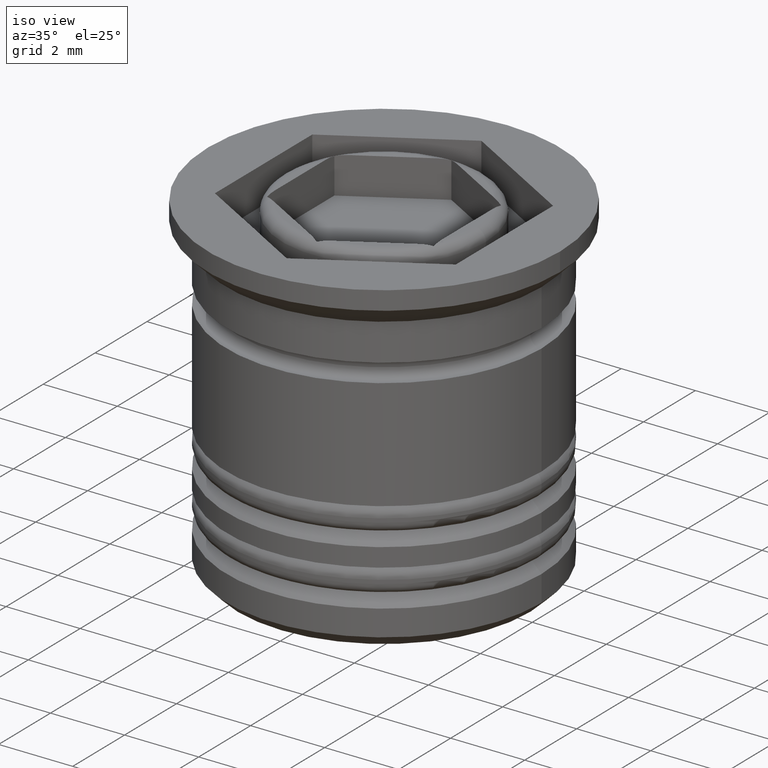
[diagram: clean part render]
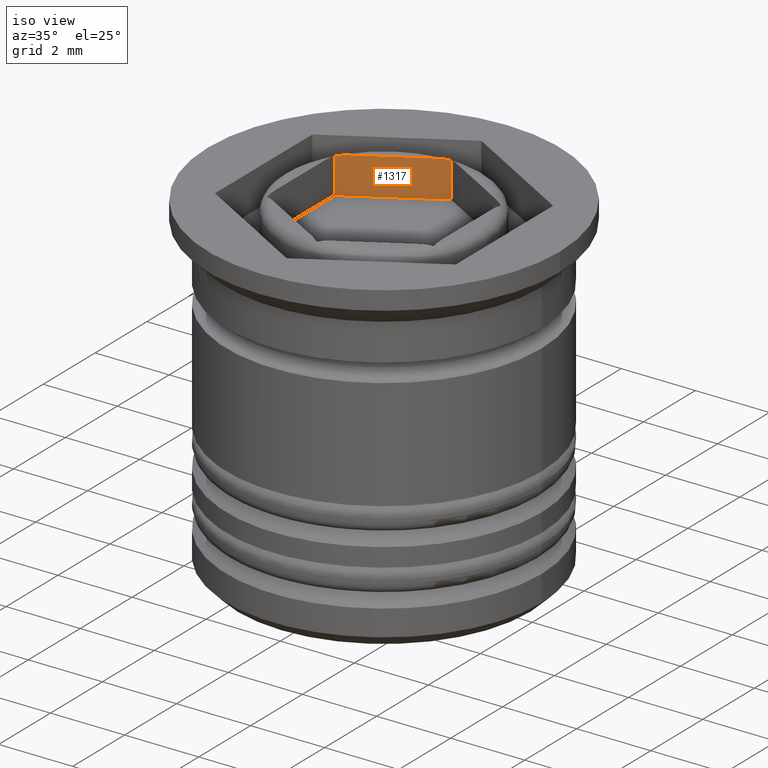
[diagram: same view with one face highlighted and labeled with its STEP entity id]
A machine part, iso view. The second image highlights one B-rep face of the part: STEP entity #1317.
In plain terms, the highlighted planar face has unit normal (-0.5, 0.866, 0).
Its self-contained STEP definition (entity closure, byte-faithful):
#37 = EDGE_CURVE ( 'NONE', #489, #778, #183, .T. ) ;
#115 = VERTEX_POINT ( 'NONE', #1488 ) ;
#183 = LINE ( 'NONE', #1781, #1104 ) ;
#209 = DIRECTION ( 'NONE',  ( -0.000000000000000000, -0.000000000000000000, 1.000000000000000000 ) ) ;
#227 = CARTESIAN_POINT ( 'NONE',  ( 0.000000000000000000, 2.598076211353315568, -0.03909113539159181361 ) ) ;
#242 = CARTESIAN_POINT ( 'NONE',  ( -0.09331629800900279048, 2.544200021578038484, -0.008514243816639925286 ) ) ;
#253 = CARTESIAN_POINT ( 'NONE',  ( -0.2853572188126657916, 2.433325144256619943, 0.000000000000000000 ) ) ;
#265 = EDGE_CURVE ( 'NONE', #531, #778, #1265, .T. ) ;
#298 = DIRECTION ( 'NONE',  ( 0.8660254037844385966, 0.5000000000000001110, 0.000000000000000000 ) ) ;
#344 = PLANE ( 'NONE',  #1432 ) ;
#389 = EDGE_CURVE ( 'NONE', #1378, #940, #735, .T. ) ;
#470 = ORIENTED_EDGE ( 'NONE', *, *, #1112, .T. ) ;
#489 = VERTEX_POINT ( 'NONE', #1349 ) ;
#531 = VERTEX_POINT ( 'NONE', #612 ) ;
#537 = CARTESIAN_POINT ( 'NONE',  ( 0.000000000000000000, 2.598076211353315568, -7.873863542433759299 ) ) ;
#559 = CARTESIAN_POINT ( 'NONE',  ( -2.249999999999999556, 1.299038105676657340, -0.03909113539159181361 ) ) ;
#562 = CARTESIAN_POINT ( 'NONE',  ( 0.000000000000000000, 2.598076211353315568, 0.000000000000000000 ) ) ;
#586 = VECTOR ( 'NONE', #1476, 1000.000000000000000 ) ;
#612 = CARTESIAN_POINT ( 'NONE',  ( -1.964642781187333931, 1.463789172773352742, 0.000000000000000000 ) ) ;
#619 = B_SPLINE_CURVE_WITH_KNOTS ( 'NONE', 3,
 ( #1074, #242, #1520, #253 ),
 .UNSPECIFIED., .F., .F.,
 ( 4, 4 ),
 ( 7.807858345385552951E-20, 0.0003318128588590312173 ),
 .UNSPECIFIED. ) ;
#645 = CARTESIAN_POINT ( 'NONE',  ( -2.061100629496125158, 1.408099208086819987, 0.000000000000000000 ) ) ;
#650 = ORIENTED_EDGE ( 'NONE', *, *, #1850, .T. ) ;
#709 = CARTESIAN_POINT ( 'NONE',  ( 0.000000000000000000, 2.598076211353315568, -1.000000000000000000 ) ) ;
#735 = LINE ( 'NONE', #878, #586 ) ;
#778 = VERTEX_POINT ( 'NONE', #559 ) ;
#878 = CARTESIAN_POINT ( 'NONE',  ( 0.000000000000000000, 2.598076211353315568, -7.873863542433759299 ) ) ;
#886 = ORIENTED_EDGE ( 'NONE', *, *, #265, .T. ) ;
#902 = LINE ( 'NONE', #562, #1365 ) ;
#940 = VERTEX_POINT ( 'NONE', #227 ) ;
#942 = CARTESIAN_POINT ( 'NONE',  ( -1.964642781187333931, 1.463789172773352742, 0.000000000000000000 ) ) ;
#1074 = CARTESIAN_POINT ( 'NONE',  ( 0.000000000000000000, 2.598076211353315568, -0.03909113539159181361 ) ) ;
#1104 = VECTOR ( 'NONE', #209, 1000.000000000000000 ) ;
#1112 = EDGE_CURVE ( 'NONE', #115, #531, #902, .T. ) ;
#1235 = CARTESIAN_POINT ( 'NONE',  ( -2.156683701990996127, 1.352914295451934867, -0.008514243816631204831 ) ) ;
#1265 = B_SPLINE_CURVE_WITH_KNOTS ( 'NONE', 3,
 ( #942, #645, #1235, #1853 ),
 .UNSPECIFIED., .F., .F.,
 ( 4, 4 ),
 ( 0.000000000000000000, 0.0003318128588590306210 ),
 .UNSPECIFIED. ) ;
#1304 = FACE_OUTER_BOUND ( 'NONE', #1583, .T. ) ;
#1317 = ADVANCED_FACE ( 'NONE', ( #1304 ), #344, .F. ) ;
#1349 = CARTESIAN_POINT ( 'NONE',  ( -2.249999999999999556, 1.299038105676657340, -1.000000000000000000 ) ) ;
#1365 = VECTOR ( 'NONE', #1644, 1000.000000000000000 ) ;
#1378 = VERTEX_POINT ( 'NONE', #709 ) ;
#1432 = AXIS2_PLACEMENT_3D ( 'NONE', #537, #1611, #1596 ) ;
#1476 = DIRECTION ( 'NONE',  ( -0.000000000000000000, -0.000000000000000000, 1.000000000000000000 ) ) ;
#1488 = CARTESIAN_POINT ( 'NONE',  ( -0.2853572188126657916, 2.433325144256619943, 0.000000000000000000 ) ) ;
#1520 = CARTESIAN_POINT ( 'NONE',  ( -0.1888993705038740090, 2.489015108943152921, 5.673802033703191998E-17 ) ) ;
#1530 = VECTOR ( 'NONE', #298, 1000.000000000000000 ) ;
#1580 = EDGE_CURVE ( 'NONE', #940, #115, #619, .T. ) ;
#1583 = EDGE_LOOP ( 'NONE', ( #1771, #1707, #470, #886, #1690, #650 ) ) ;
#1596 = DIRECTION ( 'NONE',  ( -0.8660254037844385966, -0.5000000000000001110, 0.000000000000000000 ) ) ;
#1611 = DIRECTION ( 'NONE',  ( -0.5000000000000001110, 0.8660254037844385966, 0.000000000000000000 ) ) ;
#1644 = DIRECTION ( 'NONE',  ( -0.8660254037844385966, -0.5000000000000001110, 0.000000000000000000 ) ) ;
#1690 = ORIENTED_EDGE ( 'NONE', *, *, #37, .F. ) ;
#1707 = ORIENTED_EDGE ( 'NONE', *, *, #1580, .T. ) ;
#1750 = CARTESIAN_POINT ( 'NONE',  ( 0.000000000000000000, 2.598076211353315568, -1.000000000000000000 ) ) ;
#1771 = ORIENTED_EDGE ( 'NONE', *, *, #389, .T. ) ;
#1781 = CARTESIAN_POINT ( 'NONE',  ( -2.249999999999999556, 1.299038105676657340, -7.873863542433759299 ) ) ;
#1850 = EDGE_CURVE ( 'NONE', #489, #1378, #2010, .T. ) ;
#1853 = CARTESIAN_POINT ( 'NONE',  ( -2.249999999999999556, 1.299038105676657340, -0.03909113539159181361 ) ) ;
#2010 = LINE ( 'NONE', #1750, #1530 ) ;